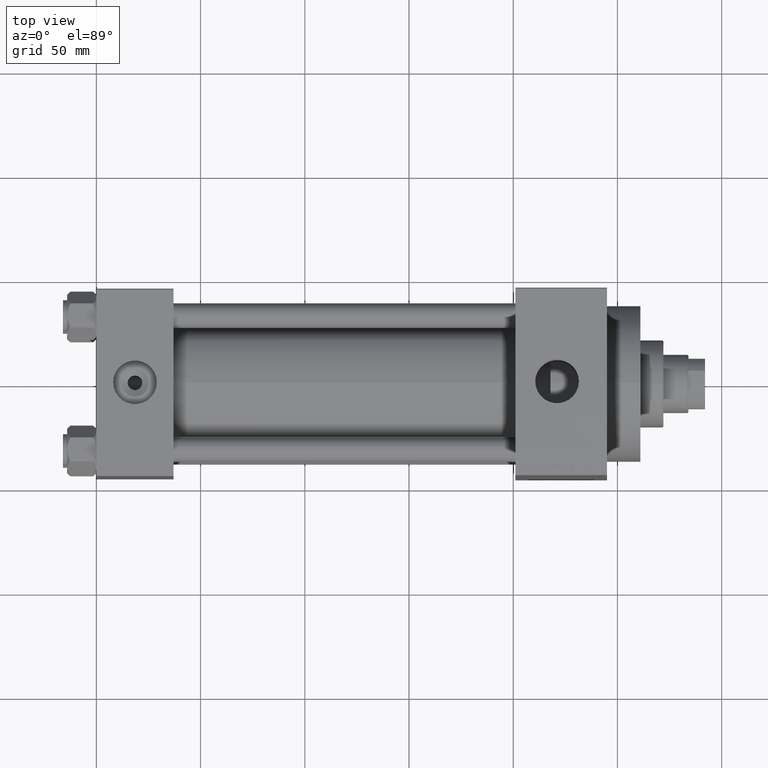
[diagram: clean part render]
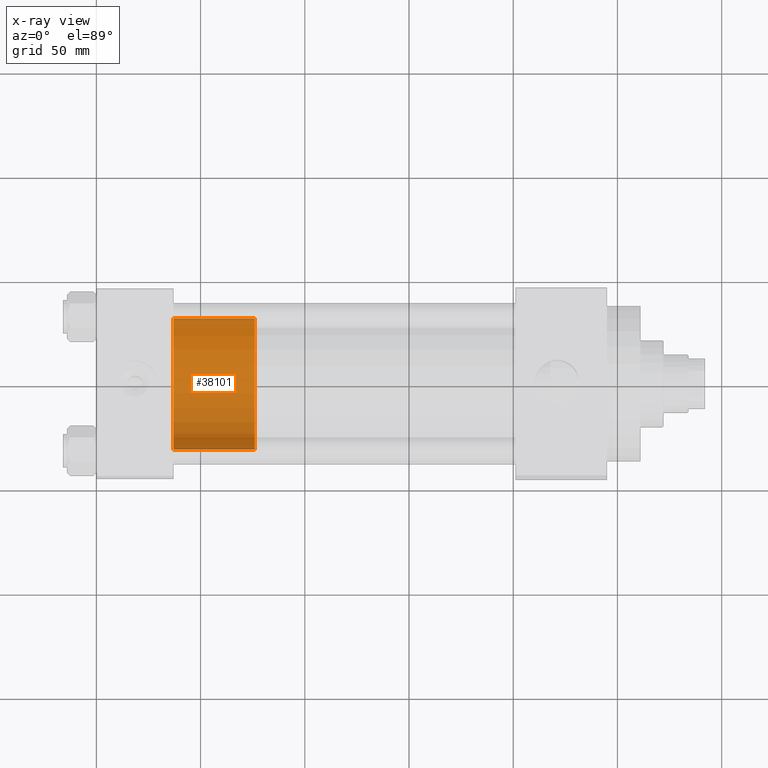
[diagram: x-ray — body ghosted, one internal face saturated and labeled with its STEP entity id]
A machine part, top view, then the same camera in x-ray: the body is ghosted and one INTERNAL B-rep face — a face not visible from any outside direction — is saturated and labeled: STEP entity #38101.
In plain terms, the highlighted cylindrical surface (partial cylindrical patch) has radius 31.5 mm, axis along (-1, 0, 0).
Its self-contained STEP definition (entity closure, byte-faithful):
#92 = DIRECTION ( 'NONE',  ( -0.000000000000000000, -0.000000000000000000, -1.000000000000000000 ) ) ;
#846 = LINE ( 'NONE', #19069, #10700 ) ;
#951 = CARTESIAN_POINT ( 'NONE',  ( 0.000000000000000000, 0.000000000000000000, 39.00000000000000000 ) ) ;
#3781 = CIRCLE ( 'NONE', #38240, 31.50000000000000000 ) ;
#4573 = CARTESIAN_POINT ( 'NONE',  ( -31.50000000000000000, 0.000000000000000000, 39.00000000000000000 ) ) ;
#6074 = FACE_OUTER_BOUND ( 'NONE', #6703, .T. ) ;
#6703 = EDGE_LOOP ( 'NONE', ( #37970, #7247, #30939, #46264 ) ) ;
#7155 = VERTEX_POINT ( 'NONE', #4573 ) ;
#7247 = ORIENTED_EDGE ( 'NONE', *, *, #24188, .T. ) ;
#8521 = DIRECTION ( 'NONE',  ( -0.000000000000000000, -0.000000000000000000, -1.000000000000000000 ) ) ;
#9222 = CIRCLE ( 'NONE', #43650, 31.50000000000000000 ) ;
#10700 = VECTOR ( 'NONE', #8521, 1000.000000000000000 ) ;
#14230 = EDGE_CURVE ( 'NONE', #16668, #7155, #3781, .T. ) ;
#16258 = VERTEX_POINT ( 'NONE', #23797 ) ;
#16668 = VERTEX_POINT ( 'NONE', #22704 ) ;
#17097 = DIRECTION ( 'NONE',  ( -1.000000000000000000, 0.000000000000000000, 0.000000000000000000 ) ) ;
#19069 = CARTESIAN_POINT ( 'NONE',  ( -31.50000000000000000, 0.000000000000000000, 39.00000000000000000 ) ) ;
#19694 = VERTEX_POINT ( 'NONE', #21185 ) ;
#20865 = CARTESIAN_POINT ( 'NONE',  ( 0.000000000000000000, 0.000000000000000000, 0.000000000000000000 ) ) ;
#21185 = CARTESIAN_POINT ( 'NONE',  ( -31.50000000000000000, 0.000000000000000000, 0.000000000000000000 ) ) ;
#22704 = CARTESIAN_POINT ( 'NONE',  ( 31.50000000000000000, 3.857637417314162689E-15, 39.00000000000000000 ) ) ;
#23797 = CARTESIAN_POINT ( 'NONE',  ( 31.50000000000000000, 3.857637417314162689E-15, 0.000000000000000000 ) ) ;
#24188 = EDGE_CURVE ( 'NONE', #16668, #16258, #43001, .T. ) ;
#24525 = CARTESIAN_POINT ( 'NONE',  ( 0.000000000000000000, 0.000000000000000000, 39.00000000000000000 ) ) ;
#25262 = CARTESIAN_POINT ( 'NONE',  ( 31.50000000000000000, 3.857637417314162689E-15, 39.00000000000000000 ) ) ;
#25447 = EDGE_CURVE ( 'NONE', #7155, #19694, #846, .T. ) ;
#27442 = EDGE_CURVE ( 'NONE', #16258, #19694, #9222, .T. ) ;
#28527 = DIRECTION ( 'NONE',  ( 0.000000000000000000, 0.000000000000000000, 1.000000000000000000 ) ) ;
#30939 = ORIENTED_EDGE ( 'NONE', *, *, #27442, .T. ) ;
#33562 = DIRECTION ( 'NONE',  ( 0.000000000000000000, 0.000000000000000000, 1.000000000000000000 ) ) ;
#37162 = DIRECTION ( 'NONE',  ( 1.000000000000000000, 0.000000000000000000, 0.000000000000000000 ) ) ;
#37970 = ORIENTED_EDGE ( 'NONE', *, *, #14230, .F. ) ;
#38101 = ADVANCED_FACE ( 'NONE', ( #6074 ), #43469, .T. ) ;
#38240 = AXIS2_PLACEMENT_3D ( 'NONE', #951, #33562, #37162 ) ;
#42506 = DIRECTION ( 'NONE',  ( -0.000000000000000000, -0.000000000000000000, -1.000000000000000000 ) ) ;
#43001 = LINE ( 'NONE', #25262, #44330 ) ;
#43163 = DIRECTION ( 'NONE',  ( 1.000000000000000000, 0.000000000000000000, 0.000000000000000000 ) ) ;
#43469 = CYLINDRICAL_SURFACE ( 'NONE', #43880, 31.50000000000000000 ) ;
#43650 = AXIS2_PLACEMENT_3D ( 'NONE', #20865, #28527, #43163 ) ;
#43880 = AXIS2_PLACEMENT_3D ( 'NONE', #24525, #42506, #17097 ) ;
#44330 = VECTOR ( 'NONE', #92, 1000.000000000000000 ) ;
#46264 = ORIENTED_EDGE ( 'NONE', *, *, #25447, .F. ) ;